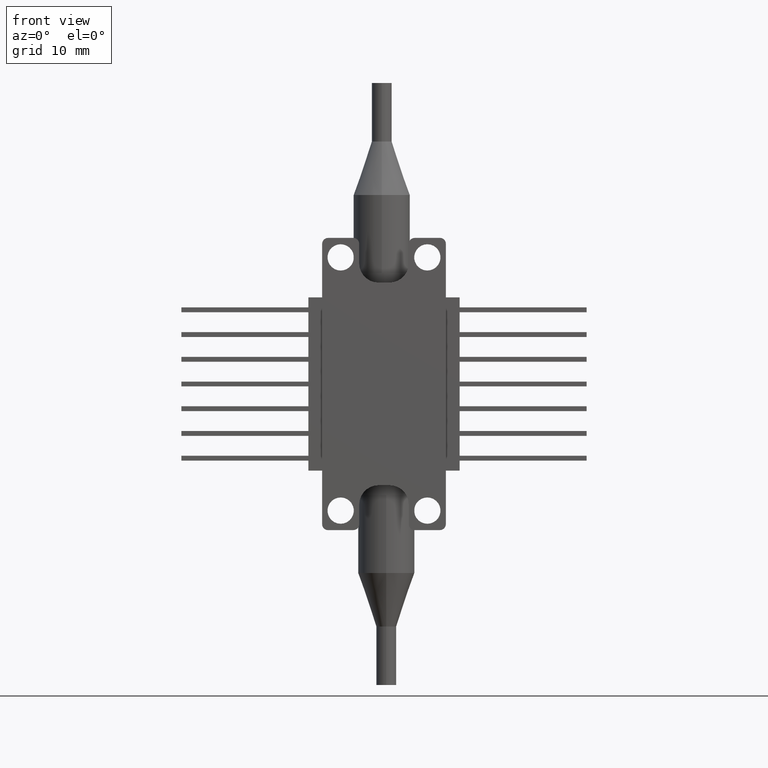
[diagram: clean part render]
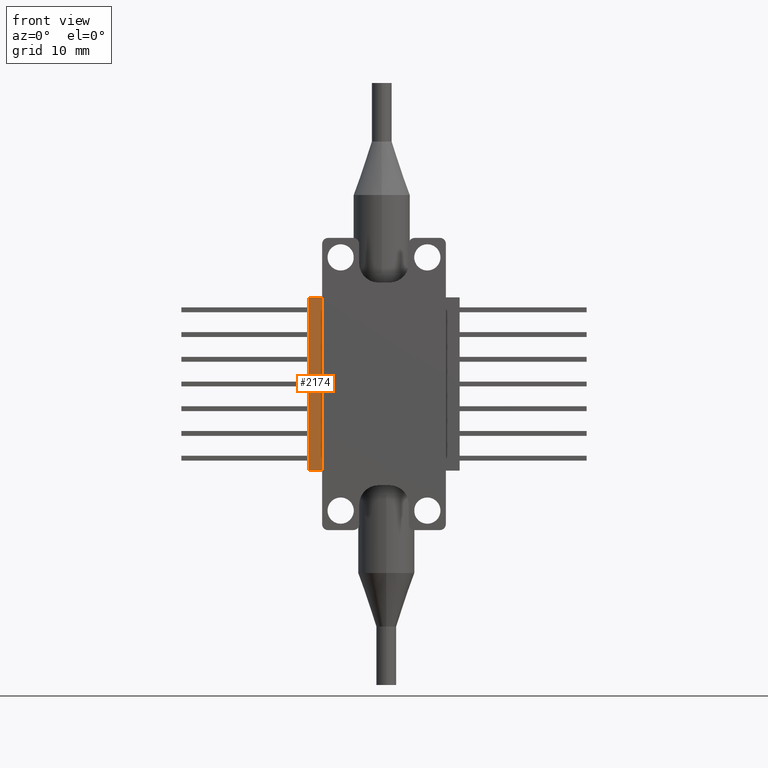
[diagram: same view with one face highlighted and labeled with its STEP entity id]
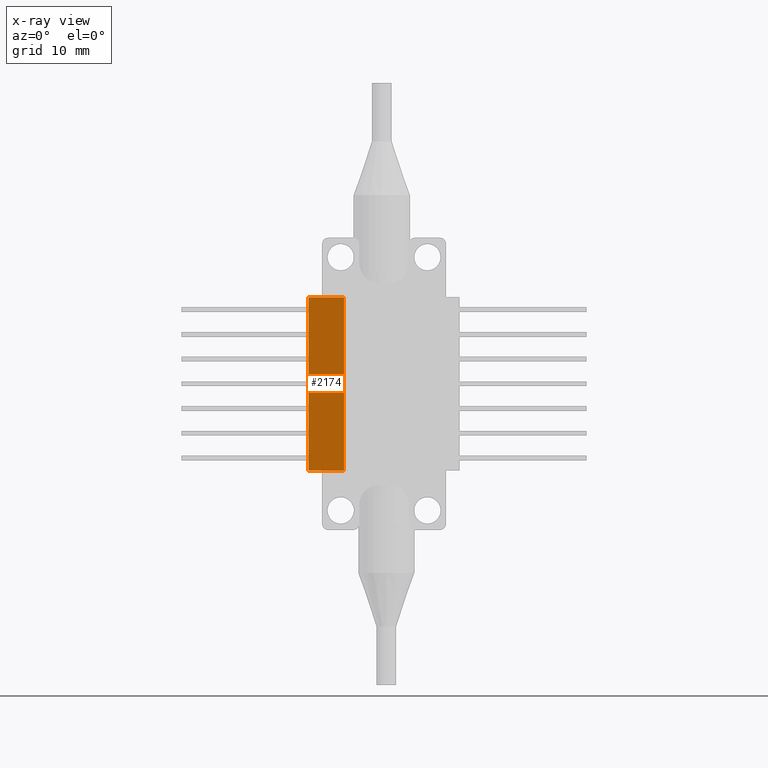
[diagram: x-ray of the same camera — body ghosted, the highlighted face saturated]
A machine part, front view. The second image highlights one B-rep face of the part: STEP entity #2174.
The next image is the same camera in x-ray: the body ghosted, the highlighted face saturated — about 0% of this face is hidden behind the body in this view.
In plain terms, the highlighted planar face has unit normal (0, 1, 0).
Its self-contained STEP definition (entity closure, byte-faithful):
#1889 = CARTESIAN_POINT ( 'NONE',  ( -107.9101848420182961, 18.47485114794374184, 32.80721449318328808 ) ) ;
#2174 = ADVANCED_FACE ( 'NONE', ( #13724 ), #16258, .F. ) ;
#2730 = ORIENTED_EDGE ( 'NONE', *, *, #5664, .T. ) ;
#3136 = CARTESIAN_POINT ( 'NONE',  ( -107.9101848420182961, 18.47485114794374894, 50.58721449318330343 ) ) ;
#3464 = EDGE_LOOP ( 'NONE', ( #17177, #5308, #14103, #2730 ) ) ;
#3972 = CARTESIAN_POINT ( 'NONE',  ( -111.5801848420182978, 18.47485114794374894, 32.80721449318328808 ) ) ;
#5071 = CARTESIAN_POINT ( 'NONE',  ( -107.9101848420182961, 18.47485114794374184, 32.80721449318328808 ) ) ;
#5308 = ORIENTED_EDGE ( 'NONE', *, *, #15136, .F. ) ;
#5459 = VECTOR ( 'NONE', #9861, 1000.000000000000000 ) ;
#5664 = EDGE_CURVE ( 'NONE', #8565, #9459, #20299, .T. ) ;
#5858 = VERTEX_POINT ( 'NONE', #16573 ) ;
#5887 = CARTESIAN_POINT ( 'NONE',  ( -111.5801848420182978, 18.47485114794374894, 32.80721449318328808 ) ) ;
#7849 = CARTESIAN_POINT ( 'NONE',  ( -107.9101848420182961, 18.47485114794374184, 32.80721449318328808 ) ) ;
#8495 = AXIS2_PLACEMENT_3D ( 'NONE', #7849, #17946, #14584 ) ;
#8565 = VERTEX_POINT ( 'NONE', #1889 ) ;
#9124 = LINE ( 'NONE', #5071, #11222 ) ;
#9459 = VERTEX_POINT ( 'NONE', #18011 ) ;
#9861 = DIRECTION ( 'NONE',  ( -1.000000000000000000, 1.077180852193661721E-16, 1.363615011418883641E-31 ) ) ;
#10369 = VERTEX_POINT ( 'NONE', #5887 ) ;
#10435 = LINE ( 'NONE', #3136, #5459 ) ;
#11222 = VECTOR ( 'NONE', #15346, 1000.000000000000000 ) ;
#12652 = VECTOR ( 'NONE', #15697, 1000.000000000000000 ) ;
#13724 = FACE_OUTER_BOUND ( 'NONE', #3464, .T. ) ;
#14103 = ORIENTED_EDGE ( 'NONE', *, *, #16718, .F. ) ;
#14233 = LINE ( 'NONE', #3972, #12652 ) ;
#14259 = VECTOR ( 'NONE', #17492, 1000.000000000000000 ) ;
#14584 = DIRECTION ( 'NONE',  ( 1.000000000000000000, -1.077180852193662214E-16, -1.363615011418883860E-31 ) ) ;
#15136 = EDGE_CURVE ( 'NONE', #10369, #5858, #14233, .T. ) ;
#15346 = DIRECTION ( 'NONE',  ( -1.000000000000000000, 1.077180852193661721E-16, 1.363615011418883641E-31 ) ) ;
#15697 = DIRECTION ( 'NONE',  ( -9.756776359347496941E-32, -1.170973411135570945E-16, 1.000000000000000000 ) ) ;
#15801 = CARTESIAN_POINT ( 'NONE',  ( -107.9101848420182961, 18.47485114794374184, 32.80721449318328808 ) ) ;
#16258 = PLANE ( 'NONE',  #8495 ) ;
#16573 = CARTESIAN_POINT ( 'NONE',  ( -111.5801848420182978, 18.47485114794374894, 50.58721449318330343 ) ) ;
#16718 = EDGE_CURVE ( 'NONE', #8565, #10369, #9124, .T. ) ;
#17177 = ORIENTED_EDGE ( 'NONE', *, *, #19626, .T. ) ;
#17492 = DIRECTION ( 'NONE',  ( -9.756776359347496941E-32, -1.170973411135570945E-16, 1.000000000000000000 ) ) ;
#17946 = DIRECTION ( 'NONE',  ( 1.077180852193662214E-16, 1.000000000000000000, 1.170973411135572670E-16 ) ) ;
#18011 = CARTESIAN_POINT ( 'NONE',  ( -107.9101848420182961, 18.47485114794374894, 50.58721449318330343 ) ) ;
#19626 = EDGE_CURVE ( 'NONE', #9459, #5858, #10435, .T. ) ;
#20299 = LINE ( 'NONE', #15801, #14259 ) ;